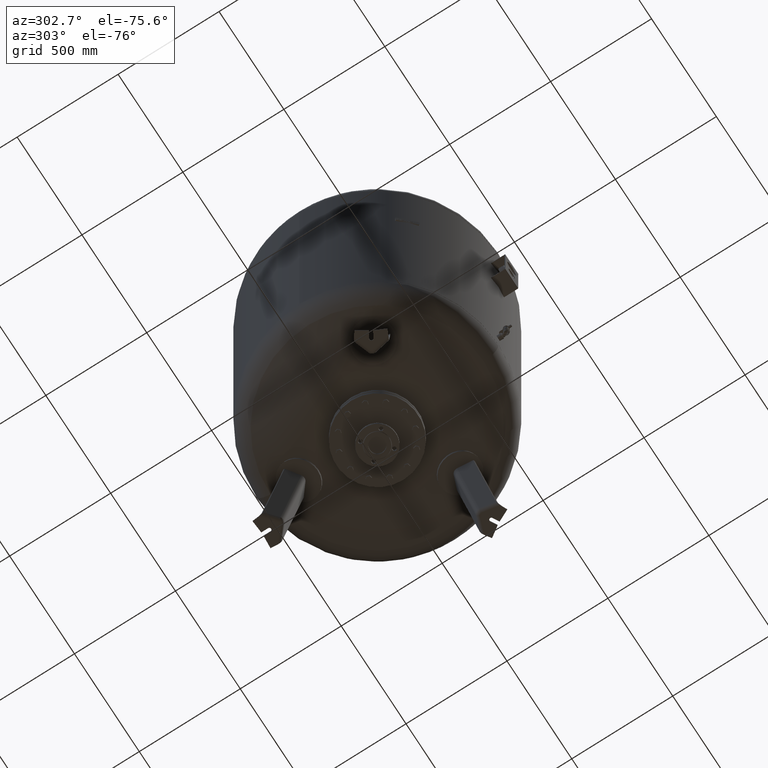
[diagram: clean part render]
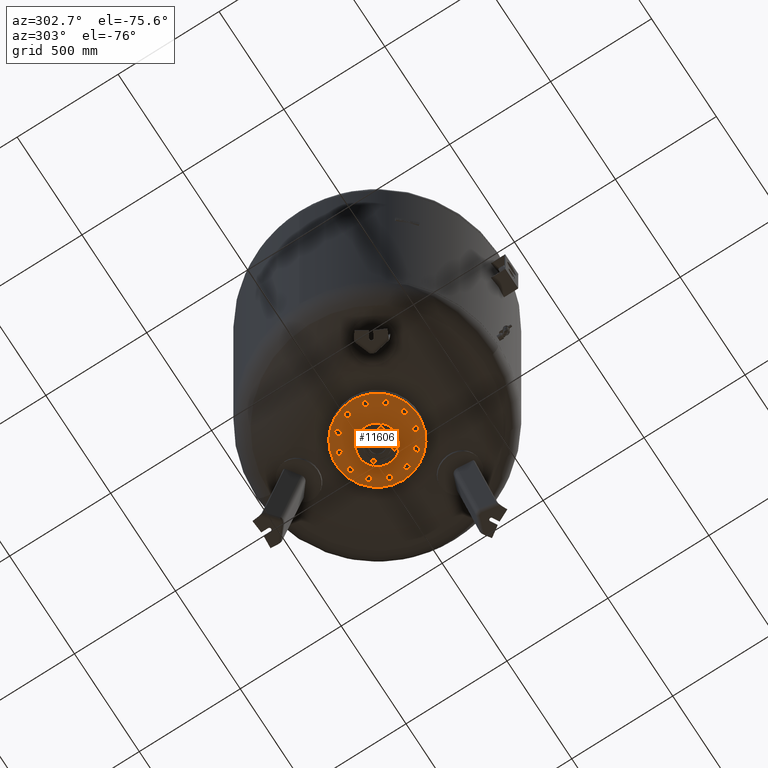
[diagram: same view with one face highlighted and labeled with its STEP entity id]
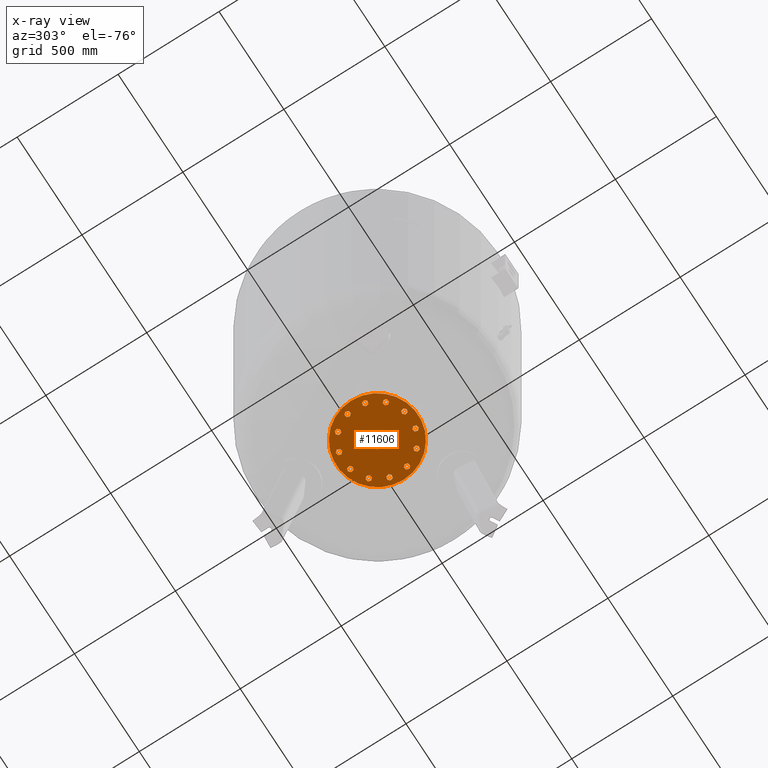
[diagram: x-ray of the same camera — body ghosted, the highlighted face saturated]
A machine part, auxiliary view. The second image highlights one B-rep face of the part: STEP entity #11606.
The next image is the same camera in x-ray: the body ghosted, the highlighted face saturated — about 0% of this face is hidden behind the body in this view.
In plain terms, the highlighted planar face has unit normal (0, 0, -1).
Its self-contained STEP definition (entity closure, byte-faithful):
#3042=CARTESIAN_POINT('',(202.500000000000000,-9.184851E-015,376.0));
#3043=VERTEX_POINT('',#3042);
#3059=CARTESIAN_POINT('',(-202.500000000000000,-3.398313E-014,376.0));
#3060=VERTEX_POINT('',#3059);
#3067=CARTESIAN_POINT('',(0.0,-9.184851E-015,376.0));
#3068=DIRECTION('',(0.0,0.0,1.0));
#3069=DIRECTION('',(1.0,0.0,0.0));
#3070=AXIS2_PLACEMENT_3D('',#3067,#3068,#3069);
#3071=CIRCLE('',#3070,202.500000000000000);
#3072=EDGE_CURVE('',#3060,#3043,#3071,.T.);
#5022=CARTESIAN_POINT('',(0.0,38.049999999999990,376.0));
#5023=VERTEX_POINT('',#5022);
#5039=CARTESIAN_POINT('',(-4.659627E-015,-38.050000000000011,376.0));
#5040=VERTEX_POINT('',#5039);
#5047=CARTESIAN_POINT('',(0.0,-9.184851E-015,376.0));
#5048=DIRECTION('',(0.0,0.0,1.0));
#5049=DIRECTION('',(0.0,1.0,0.0));
#5050=AXIS2_PLACEMENT_3D('',#5047,#5048,#5049);
#5051=CIRCLE('',#5050,38.049999999999997);
#5052=EDGE_CURVE('',#5023,#5040,#5051,.T.);
#5063=CARTESIAN_POINT('',(0.0,-9.184851E-015,376.0));
#5064=DIRECTION('',(0.0,0.0,1.0));
#5065=DIRECTION('',(0.0,1.0,0.0));
#5066=AXIS2_PLACEMENT_3D('',#5063,#5064,#5065);
#5067=CIRCLE('',#5066,38.049999999999997);
#5068=EDGE_CURVE('',#5040,#5023,#5067,.T.);
#9096=CARTESIAN_POINT('',(-157.729139400922860,30.104983413641001,376.0));
#9097=VERTEX_POINT('',#9096);
#9098=CARTESIAN_POINT('',(-148.288440171855850,40.247625971983254,376.0));
#9099=VERTEX_POINT('',#9098);
#9100=CARTESIAN_POINT('',(-157.729139400922860,30.104983413641001,376.0));
#9101=DIRECTION('',(0.681323780155013,0.731982176419128,0.0));
#9102=VECTOR('',#9101,13.856406460551087);
#9103=LINE('',#9100,#9102);
#9104=EDGE_CURVE('',#9097,#9099,#9103,.T.);
#9136=CARTESIAN_POINT('',(-171.233275132485970,33.209547496330096,376.0));
#9137=VERTEX_POINT('',#9136);
#9138=CARTESIAN_POINT('',(-171.233275132485970,33.209547496330096,376.0));
#9139=DIRECTION('',(0.974577049973894,-0.224052613607122,0.0));
#9140=VECTOR('',#9139,13.856406460551117);
#9141=LINE('',#9138,#9140);
#9142=EDGE_CURVE('',#9137,#9097,#9141,.T.);
#9167=CARTESIAN_POINT('',(-175.296711634982050,46.456754137361408,376.0));
#9168=VERTEX_POINT('',#9167);
#9169=CARTESIAN_POINT('',(-175.296711634982050,46.456754137361408,376.0));
#9170=DIRECTION('',(0.293253269818881,-0.956034790026249,0.0));
#9171=VECTOR('',#9170,13.856406460551076);
#9172=LINE('',#9169,#9171);
#9173=EDGE_CURVE('',#9168,#9137,#9172,.T.);
#9198=CARTESIAN_POINT('',(-152.351876674351930,53.494832613014573,376.0));
#9199=VERTEX_POINT('',#9198);
#9200=CARTESIAN_POINT('',(-148.288440171855850,40.247625971983254,376.0));
#9201=DIRECTION('',(-0.293253269818881,0.956034790026249,0.0));
#9202=VECTOR('',#9201,13.856406460551083);
#9203=LINE('',#9200,#9202);
#9204=EDGE_CURVE('',#9099,#9199,#9203,.T.);
#9229=CARTESIAN_POINT('',(-165.856012405915040,56.599396695703675,376.0));
#9230=VERTEX_POINT('',#9229);
#9231=CARTESIAN_POINT('',(-152.351876674351930,53.494832613014573,376.0));
#9232=DIRECTION('',(-0.974577049973894,0.224052613607123,0.0));
#9233=VECTOR('',#9232,13.856406460551119);
#9234=LINE('',#9231,#9233);
#9235=EDGE_CURVE('',#9199,#9230,#9234,.T.);
#9260=CARTESIAN_POINT('',(-165.856012405915040,56.599396695703675,376.0));
#9261=DIRECTION('',(-0.681323780155012,-0.731982176419129,0.0));
#9262=VECTOR('',#9261,13.856406460551096);
#9263=LINE('',#9260,#9262);
#9264=EDGE_CURVE('',#9230,#9168,#9263,.T.);
#9296=CARTESIAN_POINT('',(-121.544949931435720,104.936250117183760,376.0));
#9297=VERTEX_POINT('',#9296);
#9298=CARTESIAN_POINT('',(-108.297743290404380,108.999686619679820,376.0));
#9299=VERTEX_POINT('',#9298);
#9300=CARTESIAN_POINT('',(-121.544949931435720,104.936250117183760,376.0));
#9301=DIRECTION('',(0.956034790026250,0.293253269818880,0.0));
#9302=VECTOR('',#9301,13.856406460551101);
#9303=LINE('',#9300,#9302);
#9304=EDGE_CURVE('',#9297,#9299,#9303,.T.);
#9336=CARTESIAN_POINT('',(-131.687592489777960,114.376949346250780,376.0));
#9337=VERTEX_POINT('',#9336);
#9338=CARTESIAN_POINT('',(-131.687592489777960,114.376949346250780,376.0));
#9339=DIRECTION('',(0.731982176419127,-0.681323780155014,0.0));
#9340=VECTOR('',#9339,13.856406460551080);
#9341=LINE('',#9338,#9340);
#9342=EDGE_CURVE('',#9337,#9297,#9341,.T.);
#9367=CARTESIAN_POINT('',(-128.583028407088880,127.881085077813880,376.0));
#9368=VERTEX_POINT('',#9367);
#9369=CARTESIAN_POINT('',(-128.583028407088880,127.881085077813880,376.0));
#9370=DIRECTION('',(-0.224052613607122,-0.974577049973894,0.0));
#9371=VECTOR('',#9370,13.856406460551099);
#9372=LINE('',#9369,#9371);
#9373=EDGE_CURVE('',#9368,#9337,#9372,.T.);
#9398=CARTESIAN_POINT('',(-105.193179207715300,122.503822351242900,376.0));
#9399=VERTEX_POINT('',#9398);
#9400=CARTESIAN_POINT('',(-108.297743290404380,108.999686619679820,376.0));
#9401=DIRECTION('',(0.224052613607122,0.974577049973894,0.0));
#9402=VECTOR('',#9401,13.856406460551087);
#9403=LINE('',#9400,#9402);
#9404=EDGE_CURVE('',#9299,#9399,#9403,.T.);
#9429=CARTESIAN_POINT('',(-115.335821766057560,131.944521580309950,376.0));
#9430=VERTEX_POINT('',#9429);
#9431=CARTESIAN_POINT('',(-105.193179207715300,122.503822351242900,376.0));
#9432=DIRECTION('',(-0.731982176419127,0.681323780155014,0.0));
#9433=VECTOR('',#9432,13.856406460551121);
#9434=LINE('',#9431,#9433);
#9435=EDGE_CURVE('',#9399,#9430,#9434,.T.);
#9460=CARTESIAN_POINT('',(-115.335821766057560,131.944521580309950,376.0));
#9461=DIRECTION('',(-0.956034790026249,-0.293253269818881,0.0));
#9462=VECTOR('',#9461,13.856406460551076);
#9463=LINE('',#9460,#9462);
#9464=EDGE_CURVE('',#9430,#9368,#9463,.T.);
#9496=CARTESIAN_POINT('',(-52.792889283739193,151.649933345076730,376.0));
#9497=VERTEX_POINT('',#9496);
#9498=CARTESIAN_POINT('',(-39.288753552176118,148.545369262387680,376.0));
#9499=VERTEX_POINT('',#9498);
#9500=CARTESIAN_POINT('',(-52.792889283739193,151.649933345076730,376.0));
#9501=DIRECTION('',(0.974577049973894,-0.224052613607120,0.0));
#9502=VECTOR('',#9501,13.856406460551073);
#9503=LINE('',#9500,#9502);
#9504=EDGE_CURVE('',#9497,#9499,#9503,.T.);
#9536=CARTESIAN_POINT('',(-56.856325786235274,164.897139986108100,376.0));
#9537=VERTEX_POINT('',#9536);
#9538=CARTESIAN_POINT('',(-56.856325786235274,164.897139986108100,376.0));
#9539=DIRECTION('',(0.293253269818881,-0.956034790026249,0.0));
#9540=VECTOR('',#9539,13.856406460551133);
#9541=LINE('',#9538,#9540);
#9542=EDGE_CURVE('',#9537,#9497,#9541,.T.);
#9567=CARTESIAN_POINT('',(-47.415626557168267,175.039782544450330,376.0));
#9568=VERTEX_POINT('',#9567);
#9569=CARTESIAN_POINT('',(-47.415626557168267,175.039782544450330,376.0));
#9570=DIRECTION('',(-0.681323780155014,-0.731982176419128,0.0));
#9571=VECTOR('',#9570,13.856406460551069);
#9572=LINE('',#9569,#9571);
#9573=EDGE_CURVE('',#9568,#9537,#9572,.T.);
#9598=CARTESIAN_POINT('',(-29.848054323109103,158.688011820729910,376.0));
#9599=VERTEX_POINT('',#9598);
#9600=CARTESIAN_POINT('',(-39.288753552176118,148.545369262387680,376.0));
#9601=DIRECTION('',(0.681323780155014,0.731982176419127,0.0));
#9602=VECTOR('',#9601,13.856406460551076);
#9603=LINE('',#9600,#9602);
#9604=EDGE_CURVE('',#9499,#9599,#9603,.T.);
#9629=CARTESIAN_POINT('',(-33.911490825605156,171.935218461761250,376.0));
#9630=VERTEX_POINT('',#9629);
#9631=CARTESIAN_POINT('',(-29.848054323109103,158.688011820729910,376.0));
#9632=DIRECTION('',(-0.293253269818879,0.956034790026250,0.0));
#9633=VECTOR('',#9632,13.856406460551097);
#9634=LINE('',#9631,#9633);
#9635=EDGE_CURVE('',#9599,#9630,#9634,.T.);
#9660=CARTESIAN_POINT('',(-33.911490825605156,171.935218461761250,376.0));
#9661=DIRECTION('',(-0.974577049973894,0.224052613607121,0.0));
#9662=VECTOR('',#9661,13.856406460551113);
#9663=LINE('',#9660,#9662);
#9664=EDGE_CURVE('',#9630,#9568,#9663,.T.);
#9696=CARTESIAN_POINT('',(30.104983413641008,157.729139400922860,376.0));
#9697=VERTEX_POINT('',#9696);
#9698=CARTESIAN_POINT('',(40.247625971983268,148.288440171855850,376.0));
#9699=VERTEX_POINT('',#9698);
#9700=CARTESIAN_POINT('',(30.104983413641008,157.729139400922860,376.0));
#9701=DIRECTION('',(0.731982176419128,-0.681323780155013,0.0));
#9702=VECTOR('',#9701,13.856406460551090);
#9703=LINE('',#9700,#9702);
#9704=EDGE_CURVE('',#9697,#9699,#9703,.T.);
#9736=CARTESIAN_POINT('',(33.209547496330110,171.233275132485970,376.0));
#9737=VERTEX_POINT('',#9736);
#9738=CARTESIAN_POINT('',(33.209547496330110,171.233275132485970,376.0));
#9739=DIRECTION('',(-0.224052613607123,-0.974577049973894,0.0));
#9740=VECTOR('',#9739,13.856406460551119);
#9741=LINE('',#9738,#9740);
#9742=EDGE_CURVE('',#9737,#9697,#9741,.T.);
#9767=CARTESIAN_POINT('',(46.456754137361422,175.296711634982050,376.0));
#9768=VERTEX_POINT('',#9767);
#9769=CARTESIAN_POINT('',(46.456754137361422,175.296711634982050,376.0));
#9770=DIRECTION('',(-0.956034790026249,-0.293253269818881,0.0));
#9771=VECTOR('',#9770,13.856406460551076);
#9772=LINE('',#9769,#9771);
#9773=EDGE_CURVE('',#9768,#9737,#9772,.T.);
#9798=CARTESIAN_POINT('',(53.494832613014587,152.351876674351930,376.0));
#9799=VERTEX_POINT('',#9798);
#9800=CARTESIAN_POINT('',(40.247625971983268,148.288440171855850,376.0));
#9801=DIRECTION('',(0.956034790026249,0.293253269818881,0.0));
#9802=VECTOR('',#9801,13.856406460551083);
#9803=LINE('',#9800,#9802);
#9804=EDGE_CURVE('',#9699,#9799,#9803,.T.);
#9829=CARTESIAN_POINT('',(56.599396695703689,165.856012405915040,376.0));
#9830=VERTEX_POINT('',#9829);
#9831=CARTESIAN_POINT('',(53.494832613014587,152.351876674351930,376.0));
#9832=DIRECTION('',(0.224052613607123,0.974577049973894,0.0));
#9833=VECTOR('',#9832,13.856406460551119);
#9834=LINE('',#9831,#9833);
#9835=EDGE_CURVE('',#9799,#9830,#9834,.T.);
#9860=CARTESIAN_POINT('',(56.599396695703689,165.856012405915040,376.0));
#9861=DIRECTION('',(-0.731982176419129,0.681323780155012,0.0));
#9862=VECTOR('',#9861,13.856406460551096);
#9863=LINE('',#9860,#9862);
#9864=EDGE_CURVE('',#9830,#9768,#9863,.T.);
#9896=CARTESIAN_POINT('',(104.936250117183700,121.544949931435750,376.0));
#9897=VERTEX_POINT('',#9896);
#9898=CARTESIAN_POINT('',(108.999686619679760,108.297743290404440,376.0));
#9899=VERTEX_POINT('',#9898);
#9900=CARTESIAN_POINT('',(104.936250117183700,121.544949931435750,376.0));
#9901=DIRECTION('',(0.293253269818880,-0.956034790026249,0.0));
#9902=VECTOR('',#9901,13.856406460551073);
#9903=LINE('',#9900,#9902);
#9904=EDGE_CURVE('',#9897,#9899,#9903,.T.);
#9936=CARTESIAN_POINT('',(114.376949346250730,131.687592489778010,376.0));
#9937=VERTEX_POINT('',#9936);
#9938=CARTESIAN_POINT('',(114.376949346250730,131.687592489778010,376.0));
#9939=DIRECTION('',(-0.681323780155013,-0.731982176419128,0.0));
#9940=VECTOR('',#9939,13.856406460551101);
#9941=LINE('',#9938,#9940);
#9942=EDGE_CURVE('',#9937,#9897,#9941,.T.);
#9967=CARTESIAN_POINT('',(127.881085077813810,128.583028407088930,376.0));
#9968=VERTEX_POINT('',#9967);
#9969=CARTESIAN_POINT('',(127.881085077813810,128.583028407088930,376.0));
#9970=DIRECTION('',(-0.974577049973894,0.224052613607122,0.0));
#9971=VECTOR('',#9970,13.856406460551087);
#9972=LINE('',#9969,#9971);
#9973=EDGE_CURVE('',#9968,#9937,#9972,.T.);
#9998=CARTESIAN_POINT('',(122.503822351242850,105.193179207715360,376.0));
#9999=VERTEX_POINT('',#9998);
#10000=CARTESIAN_POINT('',(108.999686619679760,108.297743290404440,376.0));
#10001=DIRECTION('',(0.974577049973894,-0.224052613607122,0.0));
#10002=VECTOR('',#10001,13.856406460551087);
#10003=LINE('',#10000,#10002);
#10004=EDGE_CURVE('',#9899,#9999,#10003,.T.);
#10029=CARTESIAN_POINT('',(131.944521580309900,115.335821766057620,376.0));
#10030=VERTEX_POINT('',#10029);
#10031=CARTESIAN_POINT('',(122.503822351242850,105.193179207715360,376.0));
#10032=DIRECTION('',(0.681323780155014,0.731982176419127,0.0));
#10033=VECTOR('',#10032,13.856406460551121);
#10034=LINE('',#10031,#10033);
#10035=EDGE_CURVE('',#9999,#10030,#10034,.T.);
#10060=CARTESIAN_POINT('',(131.944521580309900,115.335821766057620,376.0));
#10061=DIRECTION('',(-0.293253269818882,0.956034790026249,0.0));
#10062=VECTOR('',#10061,13.856406460551081);
#10063=LINE('',#10060,#10062);
#10064=EDGE_CURVE('',#10030,#9968,#10063,.T.);
#10096=CARTESIAN_POINT('',(151.649933345076730,52.792889283739200,376.0));
#10097=VERTEX_POINT('',#10096);
#10098=CARTESIAN_POINT('',(148.545369262387650,39.288753552176111,376.0));
#10099=VERTEX_POINT('',#10098);
#10100=CARTESIAN_POINT('',(151.649933345076730,52.792889283739200,376.0));
#10101=DIRECTION('',(-0.224052613607122,-0.974577049973894,0.0));
#10102=VECTOR('',#10101,13.856406460551092);
#10103=LINE('',#10100,#10102);
#10104=EDGE_CURVE('',#10097,#10099,#10103,.T.);
#10136=CARTESIAN_POINT('',(164.897139986108100,56.856325786235281,376.0));
#10137=VERTEX_POINT('',#10136);
#10138=CARTESIAN_POINT('',(164.897139986108100,56.856325786235281,376.0));
#10139=DIRECTION('',(-0.956034790026249,-0.293253269818881,0.0));
#10140=VECTOR('',#10139,13.856406460551133);
#10141=LINE('',#10138,#10140);
#10142=EDGE_CURVE('',#10137,#10097,#10141,.T.);
#10167=CARTESIAN_POINT('',(175.039782544450300,47.415626557168245,376.0));
#10168=VERTEX_POINT('',#10167);
#10169=CARTESIAN_POINT('',(175.039782544450300,47.415626557168245,376.0));
#10170=DIRECTION('',(-0.731982176419126,0.681323780155016,0.0));
#10171=VECTOR('',#10170,13.856406460551069);
#10172=LINE('',#10169,#10171);
#10173=EDGE_CURVE('',#10168,#10137,#10172,.T.);
#10198=CARTESIAN_POINT('',(158.688011820729910,29.848054323109103,376.0));
#10199=VERTEX_POINT('',#10198);
#10200=CARTESIAN_POINT('',(148.545369262387650,39.288753552176111,376.0));
#10201=DIRECTION('',(0.731982176419128,-0.681323780155013,0.0));
#10202=VECTOR('',#10201,13.856406460551090);
#10203=LINE('',#10200,#10202);
#10204=EDGE_CURVE('',#10099,#10199,#10203,.T.);
#10229=CARTESIAN_POINT('',(171.935218461761250,33.911490825605156,376.0));
#10230=VERTEX_POINT('',#10229);
#10231=CARTESIAN_POINT('',(158.688011820729910,29.848054323109103,376.0));
#10232=DIRECTION('',(0.956034790026250,0.293253269818879,0.0));
#10233=VECTOR('',#10232,13.856406460551097);
#10234=LINE('',#10231,#10233);
#10235=EDGE_CURVE('',#10199,#10230,#10234,.T.);
#10260=CARTESIAN_POINT('',(171.935218461761250,33.911490825605156,376.0));
#10261=DIRECTION('',(0.224052613607120,0.974577049973894,0.0));
#10262=VECTOR('',#10261,13.856406460551087);
#10263=LINE('',#10260,#10262);
#10264=EDGE_CURVE('',#10230,#10168,#10263,.T.);
#10296=CARTESIAN_POINT('',(157.729139400922860,-30.104983413640994,376.0));
#10297=VERTEX_POINT('',#10296);
#10298=CARTESIAN_POINT('',(148.288440171855850,-40.247625971983261,376.0));
#10299=VERTEX_POINT('',#10298);
#10300=CARTESIAN_POINT('',(157.729139400922860,-30.104983413640994,376.0));
#10301=DIRECTION('',(-0.681323780155012,-0.731982176419129,0.0));
#10302=VECTOR('',#10301,13.856406460551096);
#10303=LINE('',#10300,#10302);
#10304=EDGE_CURVE('',#10297,#10299,#10303,.T.);
#10336=CARTESIAN_POINT('',(171.233275132486000,-33.209547496330110,376.0));
#10337=VERTEX_POINT('',#10336);
#10338=CARTESIAN_POINT('',(171.233275132486000,-33.209547496330110,376.0));
#10339=DIRECTION('',(-0.974577049973894,0.224052613607123,0.0));
#10340=VECTOR('',#10339,13.856406460551149);
#10341=LINE('',#10338,#10340);
#10342=EDGE_CURVE('',#10337,#10297,#10341,.T.);
#10367=CARTESIAN_POINT('',(175.296711634982050,-46.456754137361415,376.0));
#10368=VERTEX_POINT('',#10367);
#10369=CARTESIAN_POINT('',(175.296711634982050,-46.456754137361415,376.0));
#10370=DIRECTION('',(-0.293253269818880,0.956034790026250,0.0));
#10371=VECTOR('',#10370,13.856406460551062);
#10372=LINE('',#10369,#10371);
#10373=EDGE_CURVE('',#10368,#10337,#10372,.T.);
#10398=CARTESIAN_POINT('',(152.351876674351960,-53.494832613014594,376.0));
#10399=VERTEX_POINT('',#10398);
#10400=CARTESIAN_POINT('',(148.288440171855850,-40.247625971983261,376.0));
#10401=DIRECTION('',(0.293253269818883,-0.956034790026249,0.0));
#10402=VECTOR('',#10401,13.856406460551106);
#10403=LINE('',#10400,#10402);
#10404=EDGE_CURVE('',#10299,#10399,#10403,.T.);
#10429=CARTESIAN_POINT('',(165.856012405915070,-56.599396695703660,376.0));
#10430=VERTEX_POINT('',#10429);
#10431=CARTESIAN_POINT('',(152.351876674351960,-53.494832613014594,376.0));
#10432=DIRECTION('',(0.974577049973894,-0.224052613607121,0.0));
#10433=VECTOR('',#10432,13.856406460551110);
#10434=LINE('',#10431,#10433);
#10435=EDGE_CURVE('',#10399,#10430,#10434,.T.);
#10460=CARTESIAN_POINT('',(165.856012405915070,-56.599396695703660,376.0));
#10461=DIRECTION('',(0.681323780155012,0.731982176419129,0.0));
#10462=VECTOR('',#10461,13.856406460551062);
#10463=LINE('',#10460,#10462);
#10464=EDGE_CURVE('',#10430,#10368,#10463,.T.);
#10496=CARTESIAN_POINT('',(121.544949931435750,-104.936250117183680,376.0));
#10497=VERTEX_POINT('',#10496);
#10498=CARTESIAN_POINT('',(108.297743290404440,-108.999686619679760,376.0));
#10499=VERTEX_POINT('',#10498);
#10500=CARTESIAN_POINT('',(121.544949931435750,-104.936250117183680,376.0));
#10501=DIRECTION('',(-0.956034790026249,-0.293253269818882,0.0));
#10502=VECTOR('',#10501,13.856406460551081);
#10503=LINE('',#10500,#10502);
#10504=EDGE_CURVE('',#10497,#10499,#10503,.T.);
#10536=CARTESIAN_POINT('',(131.687592489778010,-114.376949346250730,376.0));
#10537=VERTEX_POINT('',#10536);
#10538=CARTESIAN_POINT('',(131.687592489778010,-114.376949346250730,376.0));
#10539=DIRECTION('',(-0.731982176419127,0.681323780155014,0.0));
#10540=VECTOR('',#10539,13.856406460551121);
#10541=LINE('',#10538,#10540);
#10542=EDGE_CURVE('',#10537,#10497,#10541,.T.);
#10567=CARTESIAN_POINT('',(128.583028407088930,-127.881085077813790,376.0));
#10568=VERTEX_POINT('',#10567);
#10569=CARTESIAN_POINT('',(128.583028407088930,-127.881085077813790,376.0));
#10570=DIRECTION('',(0.224052613607122,0.974577049973894,0.0));
#10571=VECTOR('',#10570,13.856406460551071);
#10572=LINE('',#10569,#10571);
#10573=EDGE_CURVE('',#10568,#10537,#10572,.T.);
#10598=CARTESIAN_POINT('',(105.193179207715360,-122.503822351242850,376.0));
#10599=VERTEX_POINT('',#10598);
#10600=CARTESIAN_POINT('',(108.297743290404440,-108.999686619679760,376.0));
#10601=DIRECTION('',(-0.224052613607122,-0.974577049973894,0.0));
#10602=VECTOR('',#10601,13.856406460551087);
#10603=LINE('',#10600,#10602);
#10604=EDGE_CURVE('',#10499,#10599,#10603,.T.);
#10629=CARTESIAN_POINT('',(115.335821766057620,-131.944521580309900,376.0));
#10630=VERTEX_POINT('',#10629);
#10631=CARTESIAN_POINT('',(105.193179207715360,-122.503822351242850,376.0));
#10632=DIRECTION('',(0.731982176419127,-0.681323780155014,0.0));
#10633=VECTOR('',#10632,13.856406460551121);
#10634=LINE('',#10631,#10633);
#10635=EDGE_CURVE('',#10599,#10630,#10634,.T.);
#10660=CARTESIAN_POINT('',(115.335821766057620,-131.944521580309900,376.0));
#10661=DIRECTION('',(0.956034790026249,0.293253269818883,0.0));
#10662=VECTOR('',#10661,13.856406460551085);
#10663=LINE('',#10660,#10662);
#10664=EDGE_CURVE('',#10630,#10568,#10663,.T.);
#10696=CARTESIAN_POINT('',(52.792889283739228,-151.649933345076730,376.0));
#10697=VERTEX_POINT('',#10696);
#10698=CARTESIAN_POINT('',(39.288753552176132,-148.545369262387680,376.0));
#10699=VERTEX_POINT('',#10698);
#10700=CARTESIAN_POINT('',(52.792889283739228,-151.649933345076730,376.0));
#10701=DIRECTION('',(-0.974577049973894,0.224052613607120,0.0));
#10702=VECTOR('',#10701,13.856406460551094);
#10703=LINE('',#10700,#10702);
#10704=EDGE_CURVE('',#10697,#10699,#10703,.T.);
#10736=CARTESIAN_POINT('',(56.856325786235296,-164.897139986108100,376.0));
#10737=VERTEX_POINT('',#10736);
#10738=CARTESIAN_POINT('',(56.856325786235296,-164.897139986108100,376.0));
#10739=DIRECTION('',(-0.293253269818880,0.956034790026250,0.0));
#10740=VECTOR('',#10739,13.856406460551129);
#10741=LINE('',#10738,#10740);
#10742=EDGE_CURVE('',#10737,#10697,#10741,.T.);
#10767=CARTESIAN_POINT('',(47.415626557168281,-175.039782544450300,376.0));
#10768=VERTEX_POINT('',#10767);
#10769=CARTESIAN_POINT('',(47.415626557168281,-175.039782544450300,376.0));
#10770=DIRECTION('',(0.681323780155015,0.731982176419126,0.0));
#10771=VECTOR('',#10770,13.856406460551055);
#10772=LINE('',#10769,#10771);
#10773=EDGE_CURVE('',#10768,#10737,#10772,.T.);
#10798=CARTESIAN_POINT('',(29.848054323109121,-158.688011820729910,376.0));
#10799=VERTEX_POINT('',#10798);
#10800=CARTESIAN_POINT('',(39.288753552176132,-148.545369262387680,376.0));
#10801=DIRECTION('',(-0.681323780155014,-0.731982176419127,0.0));
#10802=VECTOR('',#10801,13.856406460551073);
#10803=LINE('',#10800,#10802);
#10804=EDGE_CURVE('',#10699,#10799,#10803,.T.);
#10829=CARTESIAN_POINT('',(33.911490825605199,-171.935218461761280,376.0));
#10830=VERTEX_POINT('',#10829);
#10831=CARTESIAN_POINT('',(29.848054323109121,-158.688011820729910,376.0));
#10832=DIRECTION('',(0.293253269818880,-0.956034790026249,0.0));
#10833=VECTOR('',#10832,13.856406460551133);
#10834=LINE('',#10831,#10833);
#10835=EDGE_CURVE('',#10799,#10830,#10834,.T.);
#10860=CARTESIAN_POINT('',(33.911490825605199,-171.935218461761280,376.0));
#10861=DIRECTION('',(0.974577049973895,-0.224052613607118,0.0));
#10862=VECTOR('',#10861,13.856406460551074);
#10863=LINE('',#10860,#10862);
#10864=EDGE_CURVE('',#10830,#10768,#10863,.T.);
#10896=CARTESIAN_POINT('',(-30.104983413640952,-157.729139400922890,376.0));
#10897=VERTEX_POINT('',#10896);
#10898=CARTESIAN_POINT('',(-40.247625971983211,-148.288440171855880,376.0));
#10899=VERTEX_POINT('',#10898);
#10900=CARTESIAN_POINT('',(-30.104983413640952,-157.729139400922890,376.0));
#10901=DIRECTION('',(-0.731982176419128,0.681323780155013,0.0));
#10902=VECTOR('',#10901,13.856406460551090);
#10903=LINE('',#10900,#10902);
#10904=EDGE_CURVE('',#10897,#10899,#10903,.T.);
#10936=CARTESIAN_POINT('',(-33.209547496330039,-171.233275132486000,376.0));
#10937=VERTEX_POINT('',#10936);
#10938=CARTESIAN_POINT('',(-33.209547496330039,-171.233275132486000,376.0));
#10939=DIRECTION('',(0.224052613607122,0.974577049973894,0.0));
#10940=VECTOR('',#10939,13.856406460551115);
#10941=LINE('',#10938,#10940);
#10942=EDGE_CURVE('',#10937,#10897,#10941,.T.);
#10967=CARTESIAN_POINT('',(-46.456754137361351,-175.296711634982070,376.0));
#10968=VERTEX_POINT('',#10967);
#10969=CARTESIAN_POINT('',(-46.456754137361351,-175.296711634982070,376.0));
#10970=DIRECTION('',(0.956034790026249,0.293253269818881,0.0));
#10971=VECTOR('',#10970,13.856406460551076);
#10972=LINE('',#10969,#10971);
#10973=EDGE_CURVE('',#10968,#10937,#10972,.T.);
#10998=CARTESIAN_POINT('',(-53.494832613014523,-152.351876674351960,376.0));
#10999=VERTEX_POINT('',#10998);
#11000=CARTESIAN_POINT('',(-40.247625971983211,-148.288440171855880,376.0));
#11001=DIRECTION('',(-0.956034790026249,-0.293253269818881,0.0));
#11002=VECTOR('',#11001,13.856406460551076);
#11003=LINE('',#11000,#11002);
#11004=EDGE_CURVE('',#10899,#10999,#11003,.T.);
#11029=CARTESIAN_POINT('',(-56.599396695703625,-165.856012405915070,376.0));
#11030=VERTEX_POINT('',#11029);
#11031=CARTESIAN_POINT('',(-53.494832613014523,-152.351876674351960,376.0));
#11032=DIRECTION('',(-0.224052613607123,-0.974577049973894,0.0));
#11033=VECTOR('',#11032,13.856406460551119);
#11034=LINE('',#11031,#11033);
#11035=EDGE_CURVE('',#10999,#11030,#11034,.T.);
#11060=CARTESIAN_POINT('',(-56.599396695703625,-165.856012405915070,376.0));
#11061=DIRECTION('',(0.731982176419129,-0.681323780155012,0.0));
#11062=VECTOR('',#11061,13.856406460551101);
#11063=LINE('',#11060,#11062);
#11064=EDGE_CURVE('',#11030,#10968,#11063,.T.);
#11096=CARTESIAN_POINT('',(-104.936250117183660,-121.544949931435800,376.0));
#11097=VERTEX_POINT('',#11096);
#11098=CARTESIAN_POINT('',(-108.999686619679750,-108.297743290404470,376.0));
#11099=VERTEX_POINT('',#11098);
#11100=CARTESIAN_POINT('',(-104.936250117183660,-121.544949931435800,376.0));
#11101=DIRECTION('',(-0.293253269818882,0.956034790026249,0.0));
#11102=VECTOR('',#11101,13.856406460551094);
#11103=LINE('',#11100,#11102);
#11104=EDGE_CURVE('',#11097,#11099,#11103,.T.);
#11136=CARTESIAN_POINT('',(-114.376949346250710,-131.687592489778040,376.0));
#11137=VERTEX_POINT('',#11136);
#11138=CARTESIAN_POINT('',(-114.376949346250710,-131.687592489778040,376.0));
#11139=DIRECTION('',(0.681323780155015,0.731982176419126,0.0));
#11140=VECTOR('',#11139,13.856406460551110);
#11141=LINE('',#11138,#11140);
#11142=EDGE_CURVE('',#11137,#11097,#11141,.T.);
#11167=CARTESIAN_POINT('',(-127.881085077813760,-128.583028407088960,376.0));
#11168=VERTEX_POINT('',#11167);
#11169=CARTESIAN_POINT('',(-127.881085077813760,-128.583028407088960,376.0));
#11170=DIRECTION('',(0.974577049973894,-0.224052613607122,0.0));
#11171=VECTOR('',#11170,13.856406460551058);
#11172=LINE('',#11169,#11171);
#11173=EDGE_CURVE('',#11168,#11137,#11172,.T.);
#11198=CARTESIAN_POINT('',(-122.503822351242830,-105.193179207715390,376.0));
#11199=VERTEX_POINT('',#11198);
#11200=CARTESIAN_POINT('',(-108.999686619679750,-108.297743290404470,376.0));
#11201=DIRECTION('',(-0.974577049973894,0.224052613607122,0.0));
#11202=VECTOR('',#11201,13.856406460551087);
#11203=LINE('',#11200,#11202);
#11204=EDGE_CURVE('',#11099,#11199,#11203,.T.);
#11229=CARTESIAN_POINT('',(-131.944521580309870,-115.335821766057650,376.0));
#11230=VERTEX_POINT('',#11229);
#11231=CARTESIAN_POINT('',(-122.503822351242830,-105.193179207715390,376.0));
#11232=DIRECTION('',(-0.681323780155014,-0.731982176419127,0.0));
#11233=VECTOR('',#11232,13.856406460551110);
#11234=LINE('',#11231,#11233);
#11235=EDGE_CURVE('',#11199,#11230,#11234,.T.);
#11260=CARTESIAN_POINT('',(-131.944521580309870,-115.335821766057650,376.0));
#11261=DIRECTION('',(0.293253269818883,-0.956034790026249,0.0));
#11262=VECTOR('',#11261,13.856406460551085);
#11263=LINE('',#11260,#11262);
#11264=EDGE_CURVE('',#11230,#11168,#11263,.T.);
#11296=CARTESIAN_POINT('',(-151.649933345076730,-52.792889283739243,376.0));
#11297=VERTEX_POINT('',#11296);
#11298=CARTESIAN_POINT('',(-148.545369262387650,-39.288753552176154,376.0));
#11299=VERTEX_POINT('',#11298);
#11300=CARTESIAN_POINT('',(-151.649933345076730,-52.792889283739243,376.0));
#11301=DIRECTION('',(0.224052613607122,0.974577049973894,0.0));
#11302=VECTOR('',#11301,13.856406460551092);
#11303=LINE('',#11300,#11302);
#11304=EDGE_CURVE('',#11297,#11299,#11303,.T.);
#11336=CARTESIAN_POINT('',(-164.897139986108070,-56.856325786235317,376.0));
#11337=VERTEX_POINT('',#11336);
#11338=CARTESIAN_POINT('',(-164.897139986108070,-56.856325786235317,376.0));
#11339=DIRECTION('',(0.956034790026249,0.293253269818881,0.0));
#11340=VECTOR('',#11339,13.856406460551105);
#11341=LINE('',#11338,#11340);
#11342=EDGE_CURVE('',#11337,#11297,#11341,.T.);
#11367=CARTESIAN_POINT('',(-175.039782544450300,-47.415626557168309,376.0));
#11368=VERTEX_POINT('',#11367);
#11369=CARTESIAN_POINT('',(-175.039782544450300,-47.415626557168309,376.0));
#11370=DIRECTION('',(0.731982176419128,-0.681323780155014,0.0));
#11371=VECTOR('',#11370,13.856406460551069);
#11372=LINE('',#11369,#11371);
#11373=EDGE_CURVE('',#11368,#11337,#11372,.T.);
#11398=CARTESIAN_POINT('',(-158.688011820729910,-29.848054323109139,376.0));
#11399=VERTEX_POINT('',#11398);
#11400=CARTESIAN_POINT('',(-148.545369262387650,-39.288753552176154,376.0));
#11401=DIRECTION('',(-0.731982176419128,0.681323780155013,0.0));
#11402=VECTOR('',#11401,13.856406460551096);
#11403=LINE('',#11400,#11402);
#11404=EDGE_CURVE('',#11299,#11399,#11403,.T.);
#11429=CARTESIAN_POINT('',(-171.935218461761250,-33.911490825605220,376.0));
#11430=VERTEX_POINT('',#11429);
#11431=CARTESIAN_POINT('',(-158.688011820729910,-29.848054323109139,376.0));
#11432=DIRECTION('',(-0.956034790026249,-0.293253269818881,0.0));
#11433=VECTOR('',#11432,13.856406460551106);
#11434=LINE('',#11431,#11433);
#11435=EDGE_CURVE('',#11399,#11430,#11434,.T.);
#11460=CARTESIAN_POINT('',(-171.935218461761250,-33.911490825605220,376.0));
#11461=DIRECTION('',(-0.224052613607120,-0.974577049973894,0.0));
#11462=VECTOR('',#11461,13.856406460551087);
#11463=LINE('',#11460,#11462);
#11464=EDGE_CURVE('',#11430,#11368,#11463,.T.);
#11491=CARTESIAN_POINT('',(101.250000000000000,-9.184851E-015,376.0));
#11492=DIRECTION('',(0.0,0.0,-1.0));
#11493=DIRECTION('',(0.0,1.0,0.0));
#11494=AXIS2_PLACEMENT_3D('',#11491,#11492,#11493);
#11495=PLANE('',#11494);
#11496=CARTESIAN_POINT('',(0.0,-9.184851E-015,376.0));
#11497=DIRECTION('',(0.0,0.0,1.0));
#11498=DIRECTION('',(1.0,0.0,0.0));
#11499=AXIS2_PLACEMENT_3D('',#11496,#11497,#11498);
#11500=CIRCLE('',#11499,202.500000000000000);
#11501=EDGE_CURVE('',#3043,#3060,#11500,.T.);
#11502=ORIENTED_EDGE('',*,*,#11501,.F.);
#11503=ORIENTED_EDGE('',*,*,#3072,.F.);
#11504=EDGE_LOOP('',(#11502,#11503));
#11505=FACE_OUTER_BOUND('',#11504,.T.);
#11506=ORIENTED_EDGE('',*,*,#5052,.T.);
#11507=ORIENTED_EDGE('',*,*,#5068,.T.);
#11508=EDGE_LOOP('',(#11506,#11507));
#11509=FACE_BOUND('',#11508,.T.);
#11510=ORIENTED_EDGE('',*,*,#9104,.T.);
#11511=ORIENTED_EDGE('',*,*,#9204,.T.);
#11512=ORIENTED_EDGE('',*,*,#9235,.T.);
#11513=ORIENTED_EDGE('',*,*,#9264,.T.);
#11514=ORIENTED_EDGE('',*,*,#9173,.T.);
#11515=ORIENTED_EDGE('',*,*,#9142,.T.);
#11516=EDGE_LOOP('',(#11510,#11511,#11512,#11513,#11514,#11515));
#11517=FACE_BOUND('',#11516,.T.);
#11518=ORIENTED_EDGE('',*,*,#9304,.T.);
#11519=ORIENTED_EDGE('',*,*,#9404,.T.);
#11520=ORIENTED_EDGE('',*,*,#9435,.T.);
#11521=ORIENTED_EDGE('',*,*,#9464,.T.);
#11522=ORIENTED_EDGE('',*,*,#9373,.T.);
#11523=ORIENTED_EDGE('',*,*,#9342,.T.);
#11524=EDGE_LOOP('',(#11518,#11519,#11520,#11521,#11522,#11523));
#11525=FACE_BOUND('',#11524,.T.);
#11526=ORIENTED_EDGE('',*,*,#9504,.T.);
#11527=ORIENTED_EDGE('',*,*,#9604,.T.);
#11528=ORIENTED_EDGE('',*,*,#9635,.T.);
#11529=ORIENTED_EDGE('',*,*,#9664,.T.);
#11530=ORIENTED_EDGE('',*,*,#9573,.T.);
#11531=ORIENTED_EDGE('',*,*,#9542,.T.);
#11532=EDGE_LOOP('',(#11526,#11527,#11528,#11529,#11530,#11531));
#11533=FACE_BOUND('',#11532,.T.);
#11534=ORIENTED_EDGE('',*,*,#9704,.T.);
#11535=ORIENTED_EDGE('',*,*,#9804,.T.);
#11536=ORIENTED_EDGE('',*,*,#9835,.T.);
#11537=ORIENTED_EDGE('',*,*,#9864,.T.);
#11538=ORIENTED_EDGE('',*,*,#9773,.T.);
#11539=ORIENTED_EDGE('',*,*,#9742,.T.);
#11540=EDGE_LOOP('',(#11534,#11535,#11536,#11537,#11538,#11539));
#11541=FACE_BOUND('',#11540,.T.);
#11542=ORIENTED_EDGE('',*,*,#9904,.T.);
#11543=ORIENTED_EDGE('',*,*,#10004,.T.);
#11544=ORIENTED_EDGE('',*,*,#10035,.T.);
#11545=ORIENTED_EDGE('',*,*,#10064,.T.);
#11546=ORIENTED_EDGE('',*,*,#9973,.T.);
#11547=ORIENTED_EDGE('',*,*,#9942,.T.);
#11548=EDGE_LOOP('',(#11542,#11543,#11544,#11545,#11546,#11547));
#11549=FACE_BOUND('',#11548,.T.);
#11550=ORIENTED_EDGE('',*,*,#10104,.T.);
#11551=ORIENTED_EDGE('',*,*,#10204,.T.);
#11552=ORIENTED_EDGE('',*,*,#10235,.T.);
#11553=ORIENTED_EDGE('',*,*,#10264,.T.);
#11554=ORIENTED_EDGE('',*,*,#10173,.T.);
#11555=ORIENTED_EDGE('',*,*,#10142,.T.);
#11556=EDGE_LOOP('',(#11550,#11551,#11552,#11553,#11554,#11555));
#11557=FACE_BOUND('',#11556,.T.);
#11558=ORIENTED_EDGE('',*,*,#10304,.T.);
#11559=ORIENTED_EDGE('',*,*,#10404,.T.);
#11560=ORIENTED_EDGE('',*,*,#10435,.T.);
#11561=ORIENTED_EDGE('',*,*,#10464,.T.);
#11562=ORIENTED_EDGE('',*,*,#10373,.T.);
#11563=ORIENTED_EDGE('',*,*,#10342,.T.);
#11564=EDGE_LOOP('',(#11558,#11559,#11560,#11561,#11562,#11563));
#11565=FACE_BOUND('',#11564,.T.);
#11566=ORIENTED_EDGE('',*,*,#10504,.T.);
#11567=ORIENTED_EDGE('',*,*,#10604,.T.);
#11568=ORIENTED_EDGE('',*,*,#10635,.T.);
#11569=ORIENTED_EDGE('',*,*,#10664,.T.);
#11570=ORIENTED_EDGE('',*,*,#10573,.T.);
#11571=ORIENTED_EDGE('',*,*,#10542,.T.);
#11572=EDGE_LOOP('',(#11566,#11567,#11568,#11569,#11570,#11571));
#11573=FACE_BOUND('',#11572,.T.);
#11574=ORIENTED_EDGE('',*,*,#10704,.T.);
#11575=ORIENTED_EDGE('',*,*,#10804,.T.);
#11576=ORIENTED_EDGE('',*,*,#10835,.T.);
#11577=ORIENTED_EDGE('',*,*,#10864,.T.);
#11578=ORIENTED_EDGE('',*,*,#10773,.T.);
#11579=ORIENTED_EDGE('',*,*,#10742,.T.);
#11580=EDGE_LOOP('',(#11574,#11575,#11576,#11577,#11578,#11579));
#11581=FACE_BOUND('',#11580,.T.);
#11582=ORIENTED_EDGE('',*,*,#10904,.T.);
#11583=ORIENTED_EDGE('',*,*,#11004,.T.);
#11584=ORIENTED_EDGE('',*,*,#11035,.T.);
#11585=ORIENTED_EDGE('',*,*,#11064,.T.);
#11586=ORIENTED_EDGE('',*,*,#10973,.T.);
#11587=ORIENTED_EDGE('',*,*,#10942,.T.);
#11588=EDGE_LOOP('',(#11582,#11583,#11584,#11585,#11586,#11587));
#11589=FACE_BOUND('',#11588,.T.);
#11590=ORIENTED_EDGE('',*,*,#11104,.T.);
#11591=ORIENTED_EDGE('',*,*,#11204,.T.);
#11592=ORIENTED_EDGE('',*,*,#11235,.T.);
#11593=ORIENTED_EDGE('',*,*,#11264,.T.);
#11594=ORIENTED_EDGE('',*,*,#11173,.T.);
#11595=ORIENTED_EDGE('',*,*,#11142,.T.);
#11596=EDGE_LOOP('',(#11590,#11591,#11592,#11593,#11594,#11595));
#11597=FACE_BOUND('',#11596,.T.);
#11598=ORIENTED_EDGE('',*,*,#11304,.T.);
#11599=ORIENTED_EDGE('',*,*,#11404,.T.);
#11600=ORIENTED_EDGE('',*,*,#11435,.T.);
#11601=ORIENTED_EDGE('',*,*,#11464,.T.);
#11602=ORIENTED_EDGE('',*,*,#11373,.T.);
#11603=ORIENTED_EDGE('',*,*,#11342,.T.);
#11604=EDGE_LOOP('',(#11598,#11599,#11600,#11601,#11602,#11603));
#11605=FACE_BOUND('',#11604,.T.);
#11606=ADVANCED_FACE('',(#11505,#11509,#11517,#11525,#11533,#11541,#11549,#11557,#11565,#11573,#11581,#11589,#11597,#11605),#11495,.T.);